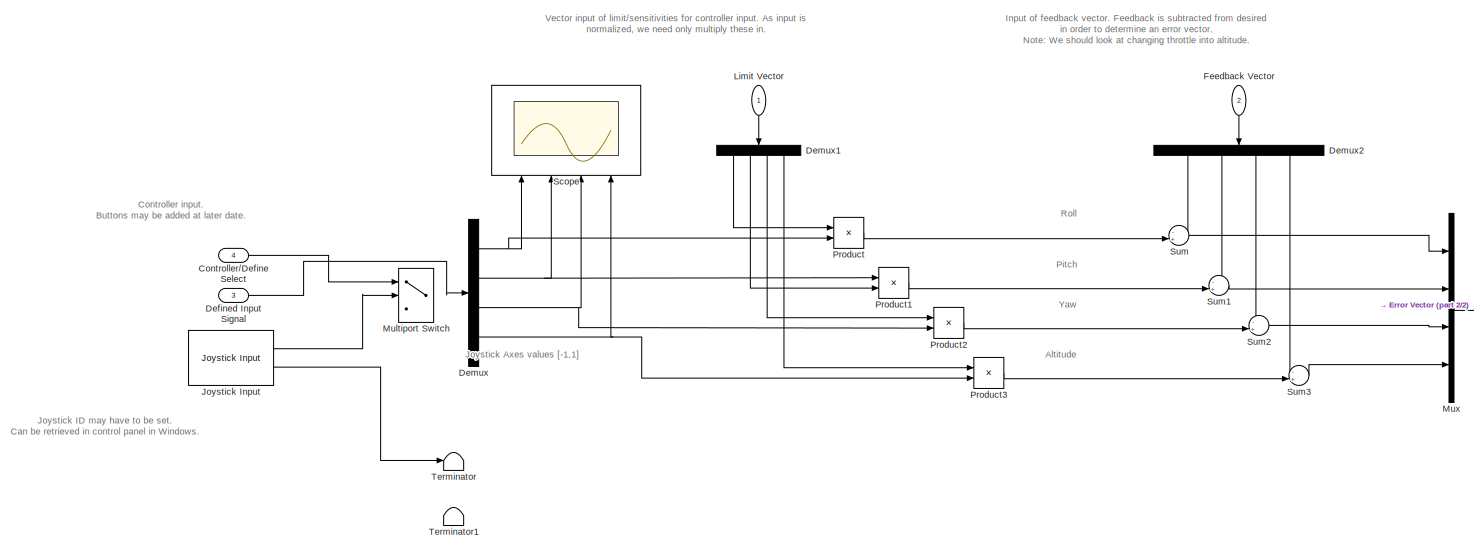
[diagram: root canvas - part 1/2, most of the canvas]
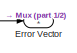
[diagram: root canvas - part 2/2, middle right region]
MODEL slx_2efa12c4db59
KIND model
CONFIG AbsTol = auto
CONFIG EnableMultiTasking = off
CONFIG FixedStep = auto
CONFIG MaxStep = auto
CONFIG MinStep = auto
CONFIG RelTol = 1e-3
CONFIG SampleTimeConstraint = Unconstrained
CONFIG Solver = VariableStepAuto
CONFIG SolverName = VariableStepAuto
CONFIG StartTime = 0.0
CONFIG StopTime = inf
BLOCK [Inport] Controller//Define Select
  IconDisplay = Port number
  Port = 4
BLOCK [Inport] Defined Input Signal
  IconDisplay = Port number
  Port = 3
  PortDimensions = 4
BLOCK [Demux] Demux
  DisplayOption = bar
  Ports = [1, 4]
BLOCK [Demux] Demux1
  DisplayOption = bar
  Ports = [1, 4]
BLOCK [Demux] Demux2
  DisplayOption = bar
  Ports = [1, 4]
BLOCK [Outport] Error Vector
  IconDisplay = Port number
BLOCK [Inport] Feedback Vector
  IconDisplay = Port number
  Port = 2
  PortDimensions = 4
BLOCK [Reference] Joystick Input  REF=vrlib/Joystick Input
  Commented = on
  Ports = [0, 2]
  SourceBlock = vrlib/Joystick Input
  SourceType = Joystick Input
BLOCK [Inport] Limit Vector
  IconDisplay = Port number
  PortDimensions = 4
BLOCK [MultiPortSwitch] Multiport Switch
  Commented = on
  DataPortOrder = Zero-based contiguous
  InputSameDT = off
  Inputs = 2
  Ports = [3, 1]
  SaturateOnIntegerOverflow = off
BLOCK [Mux] Mux
  DisplayOption = bar
  Ports = [4, 1]
BLOCK [Product] Product
  InputSameDT = off
  OutDataTypeStr = Inherit: Inherit via internal rule
  Ports = [2, 1]
  RndMeth = Floor
  SaturateOnIntegerOverflow = off
BLOCK [Product] Product1
  InputSameDT = off
  OutDataTypeStr = Inherit: Inherit via internal rule
  Ports = [2, 1]
  RndMeth = Floor
  SaturateOnIntegerOverflow = off
BLOCK [Product] Product2
  InputSameDT = off
  OutDataTypeStr = Inherit: Inherit via internal rule
  Ports = [2, 1]
  RndMeth = Floor
  SaturateOnIntegerOverflow = off
BLOCK [Product] Product3
  InputSameDT = off
  OutDataTypeStr = Inherit: Inherit via internal rule
  Ports = [2, 1]
  RndMeth = Floor
  SaturateOnIntegerOverflow = off
BLOCK [Scope] Scope
  NumInputPorts = 4
  Ports = [4]
  ScopeSpecificationString = Simulink.scopes.TimeScopeBlockCfg('CurrentConfiguration', extmgr.ConfigurationSet(extmgr.Configuration('Core','General UI',true),extmgr.Configuration('Core','Source UI',true),extmgr.Configuration('Sources','WiredSimulink',true,'DataLoggingDecimateData',true,'DataLoggingDecimation','3','SampleTime','0.05'),extmgr.Configuration('Visuals','Time Domain',true,'SerializedDisplays',{struct('MinYLimReal',...<+3386ch>
BLOCK [Sum] Sum
  IconShape = round
  InputSameDT = off
  Inputs = -+|
  OutDataTypeStr = Inherit: Inherit via internal rule
  Ports = [2, 1]
  SaturateOnIntegerOverflow = off
BLOCK [Sum] Sum1
  IconShape = round
  InputSameDT = off
  Inputs = -+|
  OutDataTypeStr = Inherit: Inherit via internal rule
  Ports = [2, 1]
  SaturateOnIntegerOverflow = off
BLOCK [Sum] Sum2
  IconShape = round
  InputSameDT = off
  Inputs = -+|
  OutDataTypeStr = Inherit: Inherit via internal rule
  Ports = [2, 1]
  SaturateOnIntegerOverflow = off
BLOCK [Sum] Sum3
  IconShape = round
  InputSameDT = off
  Inputs = -+|
  OutDataTypeStr = Inherit: Inherit via internal rule
  Ports = [2, 1]
  SaturateOnIntegerOverflow = off
BLOCK [Terminator] Terminator
BLOCK [Terminator] Terminator1
  Commented = on
ANNOTATION (root): Altitude
ANNOTATION (root): Controller input. Buttons may be added at later date.
ANNOTATION (root): Input of feedback vector. Feedback is subtracted from desired in order to determine an error vector. Note: We should look at changing throttle into altitude.
ANNOTATION (root): Joystick Axes values [-1,1]
ANNOTATION (root): Joystick ID may have to be set. Can be retrieved in control panel in Windows.
ANNOTATION (root): Pitch
ANNOTATION (root): Roll
ANNOTATION (root): Vector input of limit/sensitivities for controller input. As input is normalized, we need only multiply these in.
ANNOTATION (root): Yaw
LINE Controller//Define Select:1 -> Multiport Switch:1
LINE Defined Input Signal:1 -> Demux:1
LINE Demux1:1 -> Product:1
LINE Demux1:2 -> Product1:2
LINE Demux1:3 -> Product2:1
LINE Demux1:4 -> Product3:1
LINE Demux2:1 -> Sum:1
LINE Demux2:2 -> Sum1:1
LINE Demux2:3 -> Sum2:1
LINE Demux2:4 -> Sum3:1
NET Demux:1 -> Product:2, Scope:1
NET Demux:2 -> Product1:1, Scope:2
NET Demux:3 -> Product2:2, Scope:3
NET Demux:4 -> Product3:2, Scope:4
LINE Feedback Vector:1 -> Demux2:1
LINE Joystick Input:1 -> Multiport Switch:2
LINE Joystick Input:2 -> Terminator:1
LINE Limit Vector:1 -> Demux1:1
LINE Mux:1 -> Error Vector:1
LINE Product1:1 -> Sum1:2
LINE Product2:1 -> Sum2:2
LINE Product3:1 -> Sum3:2
LINE Product:1 -> Sum:2
LINE Sum1:1 -> Mux:2
LINE Sum2:1 -> Mux:3
LINE Sum3:1 -> Mux:4
LINE Sum:1 -> Mux:1
note: NET lines group one-source signal fan-out (src -> all destinations, sorted); 1:1 wires keep LINE
